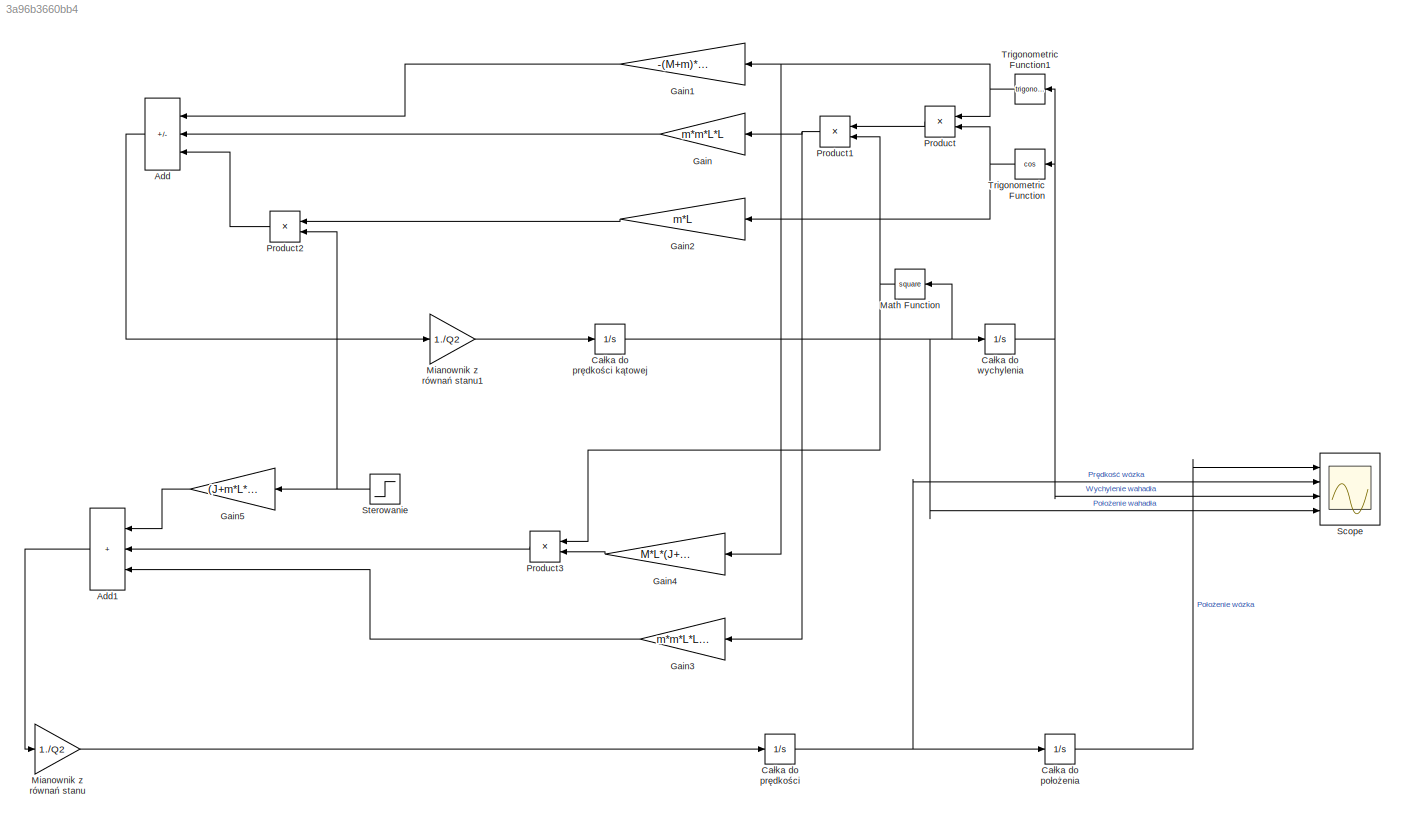
MODEL slx_3a96b3660bb4
KIND model
CONFIG AbsTol = auto
CONFIG EnableMultiTasking = off
CONFIG FixedStep = auto
CONFIG MaxStep = auto
CONFIG MinStep = auto
CONFIG RelTol = 1e-3
CONFIG SampleTimeConstraint = Unconstrained
CONFIG Solver = VariableStepAuto
CONFIG SolverName = VariableStepAuto
CONFIG StartTime = 0.0
CONFIG StopTime = 10.0
BLOCK [Sum] Add
  IconShape = rectangular
  Inputs = +--
  NameLocation = top
  Ports = [3, 1]
BLOCK [Sum] Add1
  IconShape = rectangular
  Inputs = +++
  NameLocation = top
  Ports = [3, 1]
BLOCK [Integrator] Całka do położenia
  Ports = [1, 1]
BLOCK [Integrator] Całka do prędkości
  Ports = [1, 1]
BLOCK [Integrator] Całka do prędkości kątowej
  Ports = [1, 1]
BLOCK [Integrator] Całka do wychylenia
  Ports = [1, 1]
BLOCK [Gain] Gain
  Gain = m*m*L*L
  NameLocation = top
BLOCK [Gain] Gain1
  Gain = -(M+m)*m*g*L
  NameLocation = top
BLOCK [Gain] Gain2
  Gain = m*L
  NameLocation = top
BLOCK [Gain] Gain3
  Gain = m*m*L*L*g
  NameLocation = top
BLOCK [Gain] Gain4
  Gain = M*L*(J+m*L*L)
  NameLocation = top
BLOCK [Gain] Gain5
  Gain = (J+m*L*L)
  NameLocation = top
BLOCK [Math] Math Function
  NameLocation = top
  Operator = square
  Ports = [1, 1]
BLOCK [Gain] Mianownik z równań stanu
  Gain = 1./Q2
BLOCK [Gain] Mianownik z równań stanu1
  Gain = 1./Q2
BLOCK [Product] Product
  NameLocation = top
  Ports = [2, 1]
BLOCK [Product] Product1
  NameLocation = top
  Ports = [2, 1]
BLOCK [Product] Product2
  NameLocation = top
  Ports = [2, 1]
BLOCK [Product] Product3
  NameLocation = top
  Ports = [2, 1]
BLOCK [Scope] Scope
  Floating = off
  NumInputPorts = 4
  Ports = [4]
  ScopeSpecificationString = Simulink.scopes.TimeScopeBlockCfg('CurrentConfiguration', extmgr.ConfigurationSet(extmgr.Configuration('Core','General UI',true),extmgr.Configuration('Core','Source UI',true),extmgr.Configuration('Sources','WiredSimulink',true),extmgr.Configuration('Visuals','Time Domain',true,'SerializedDisplays',{struct('MinYLimReal','-10','MaxYLimReal','10','YLabelReal','','MinYLimMag','0','MaxYLimMag','10','Le...<+1308ch>
BLOCK [Step] Sterowanie
  NameLocation = top
  SampleTime = 0
BLOCK [Trigonometry] Trigonometric Function
  NameLocation = top
  Operator = cos
  Ports = [1, 1]
BLOCK [Trigonometry] Trigonometric Function1
  NameLocation = top
  Ports = [1, 1]
LINE Add1:1 -> Mianownik z równań stanu:1
LINE Add:1 -> Mianownik z równań stanu1:1
LINE Całka do położenia:1 -> Scope:1
NET Całka do prędkości kątowej:1 -> Całka do wychylenia:1, Math Function:1, Scope:4
NET Całka do prędkości:1 -> Całka do położenia:1, Scope:2
NET Całka do wychylenia:1 -> Scope:3, Trigonometric Function1:1, Trigonometric Function:1
LINE Gain1:1 -> Add:1
LINE Gain2:1 -> Product2:1
LINE Gain3:1 -> Add1:3
LINE Gain4:1 -> Product3:2
LINE Gain5:1 -> Add1:1
LINE Gain:1 -> Add:2
NET Math Function:1 -> Product1:2, Product3:1
LINE Mianownik z równań stanu1:1 -> Całka do prędkości kątowej:1
LINE Mianownik z równań stanu:1 -> Całka do prędkości:1
NET Product1:1 -> Gain3:1, Gain:1
LINE Product2:1 -> Add:3
LINE Product3:1 -> Add1:2
LINE Product:1 -> Product1:1
NET Sterowanie:1 -> Gain5:1, Product2:2
NET Trigonometric Function1:1 -> Gain1:1, Gain4:1, Product:1
NET Trigonometric Function:1 -> Gain2:1, Product:2
note: NET lines group one-source signal fan-out (src -> all destinations, sorted); 1:1 wires keep LINE
